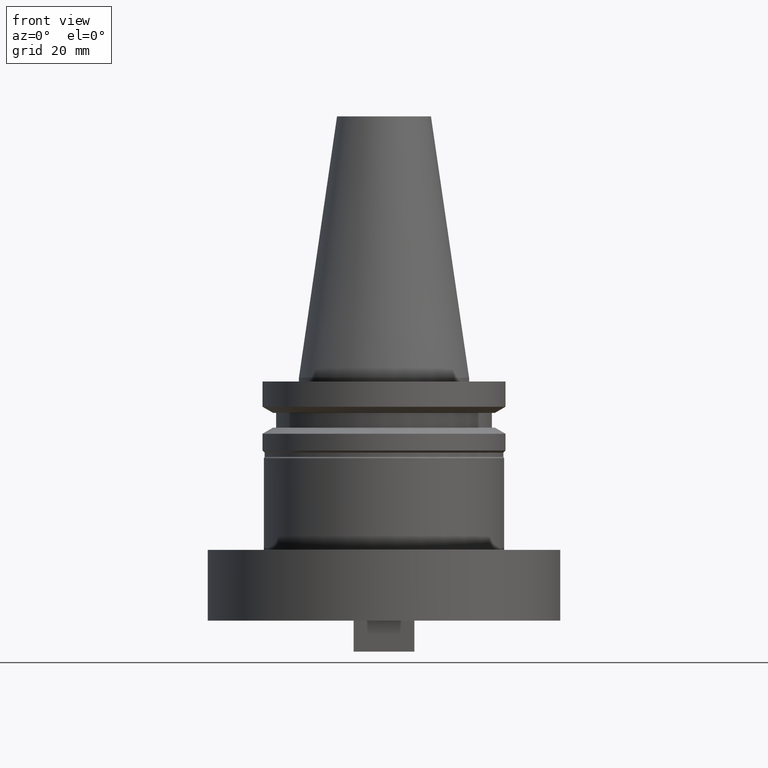
[diagram: clean part render]
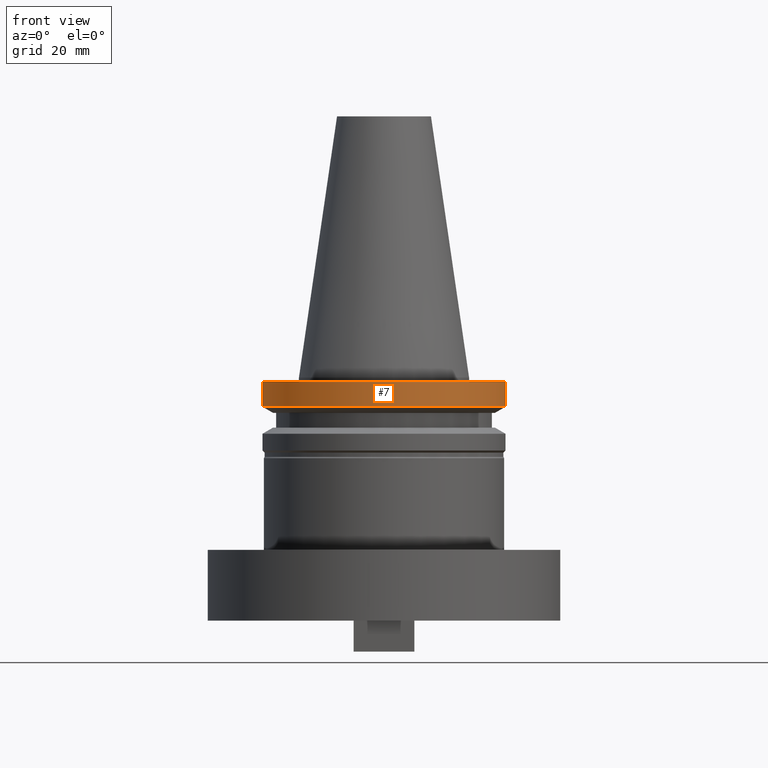
[diagram: same view with one face highlighted and labeled with its STEP entity id]
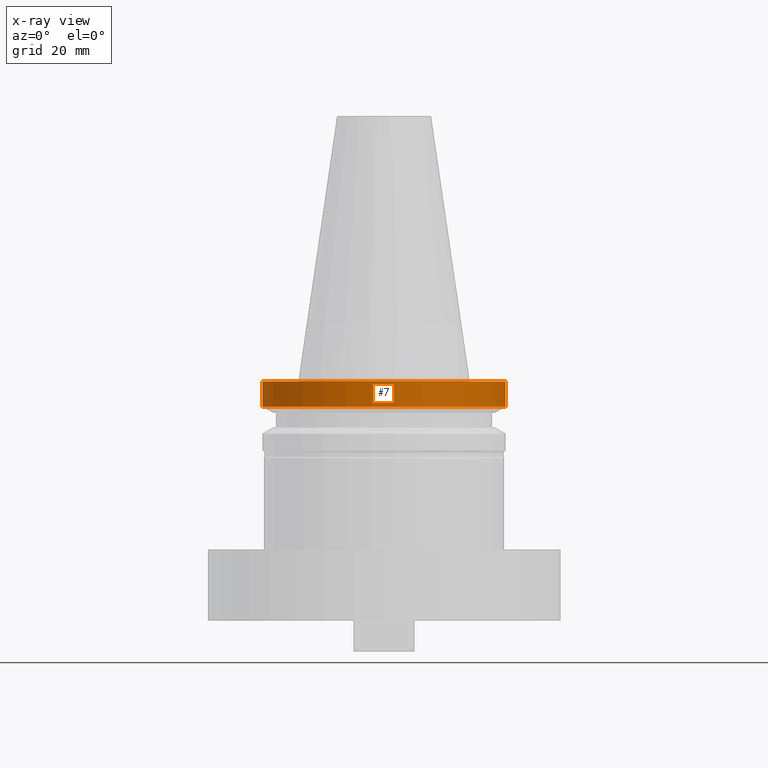
[diagram: x-ray of the same camera — body ghosted, the highlighted face saturated]
A machine part, front view. The second image highlights one B-rep face of the part: STEP entity #7.
The next image is the same camera in x-ray: the body ghosted, the highlighted face saturated — about 0% of this face is hidden behind the body in this view.
In plain terms, the highlighted cylindrical surface (partial cylindrical patch) has radius 31.75 mm, axis along (-0, -0, 1).
Its self-contained STEP definition (entity closure, byte-faithful):
#7 = ADVANCED_FACE ( 'NONE', ( #417 ), #886, .T. ) ;
#43 = DIRECTION ( 'NONE',  ( 1.000000000000000000, 0.000000000000000000, 0.000000000000000000 ) ) ;
#49 = DIRECTION ( 'NONE',  ( -0.000000000000000000, -0.000000000000000000, 1.000000000000000000 ) ) ;
#65 = VERTEX_POINT ( 'NONE', #655 ) ;
#124 = ORIENTED_EDGE ( 'NONE', *, *, #444, .T. ) ;
#159 = EDGE_CURVE ( 'NONE', #579, #65, #989, .T. ) ;
#180 = DIRECTION ( 'NONE',  ( -0.000000000000000000, -0.000000000000000000, 1.000000000000000000 ) ) ;
#199 = EDGE_LOOP ( 'NONE', ( #586, #124, #418, #864 ) ) ;
#225 = VECTOR ( 'NONE', #420, 1000.000000000000000 ) ;
#244 = CIRCLE ( 'NONE', #1035, 31.75000000000000000 ) ;
#264 = VERTEX_POINT ( 'NONE', #589 ) ;
#271 = CARTESIAN_POINT ( 'NONE',  ( 31.75000000000000000, 0.000000000000000000, -1.000000000000000888 ) ) ;
#304 = VECTOR ( 'NONE', #49, 1000.000000000000000 ) ;
#336 = CIRCLE ( 'NONE', #820, 31.75000000000000000 ) ;
#345 = LINE ( 'NONE', #891, #304 ) ;
#385 = CARTESIAN_POINT ( 'NONE',  ( 0.000000000000000000, 0.000000000000000000, -1.000000000000000888 ) ) ;
#417 = FACE_OUTER_BOUND ( 'NONE', #199, .T. ) ;
#418 = ORIENTED_EDGE ( 'NONE', *, *, #932, .T. ) ;
#420 = DIRECTION ( 'NONE',  ( -0.000000000000000000, -0.000000000000000000, 1.000000000000000000 ) ) ;
#444 = EDGE_CURVE ( 'NONE', #579, #264, #336, .T. ) ;
#458 = DIRECTION ( 'NONE',  ( -0.000000000000000000, -0.000000000000000000, 1.000000000000000000 ) ) ;
#512 = DIRECTION ( 'NONE',  ( -0.000000000000000000, -0.000000000000000000, 1.000000000000000000 ) ) ;
#555 = DIRECTION ( 'NONE',  ( 1.000000000000000000, 0.000000000000000000, 0.000000000000000000 ) ) ;
#579 = VERTEX_POINT ( 'NONE', #1140 ) ;
#586 = ORIENTED_EDGE ( 'NONE', *, *, #159, .F. ) ;
#589 = CARTESIAN_POINT ( 'NONE',  ( 31.75000000000000000, 0.000000000000000000, -7.605276606597335842 ) ) ;
#602 = CARTESIAN_POINT ( 'NONE',  ( 0.000000000000000000, 0.000000000000000000, 68.25000000000000000 ) ) ;
#637 = DIRECTION ( 'NONE',  ( 1.000000000000000000, 0.000000000000000000, 0.000000000000000000 ) ) ;
#655 = CARTESIAN_POINT ( 'NONE',  ( -31.75000000000000000, 3.888253587292846476E-15, -1.000000000000000888 ) ) ;
#747 = AXIS2_PLACEMENT_3D ( 'NONE', #602, #512, #43 ) ;
#820 = AXIS2_PLACEMENT_3D ( 'NONE', #924, #180, #555 ) ;
#864 = ORIENTED_EDGE ( 'NONE', *, *, #983, .F. ) ;
#868 = CARTESIAN_POINT ( 'NONE',  ( -31.75000000000000000, 3.888253587292846476E-15, 68.25000000000000000 ) ) ;
#886 = CYLINDRICAL_SURFACE ( 'NONE', #747, 31.75000000000000000 ) ;
#891 = CARTESIAN_POINT ( 'NONE',  ( 31.75000000000000000, 0.000000000000000000, 68.25000000000000000 ) ) ;
#924 = CARTESIAN_POINT ( 'NONE',  ( 0.000000000000000000, 0.000000000000000000, -7.605276606597335842 ) ) ;
#932 = EDGE_CURVE ( 'NONE', #264, #1050, #345, .T. ) ;
#983 = EDGE_CURVE ( 'NONE', #65, #1050, #244, .T. ) ;
#989 = LINE ( 'NONE', #868, #225 ) ;
#1035 = AXIS2_PLACEMENT_3D ( 'NONE', #385, #458, #637 ) ;
#1050 = VERTEX_POINT ( 'NONE', #271 ) ;
#1140 = CARTESIAN_POINT ( 'NONE',  ( -31.75000000000000000, 3.888253587292846476E-15, -7.605276606597335842 ) ) ;